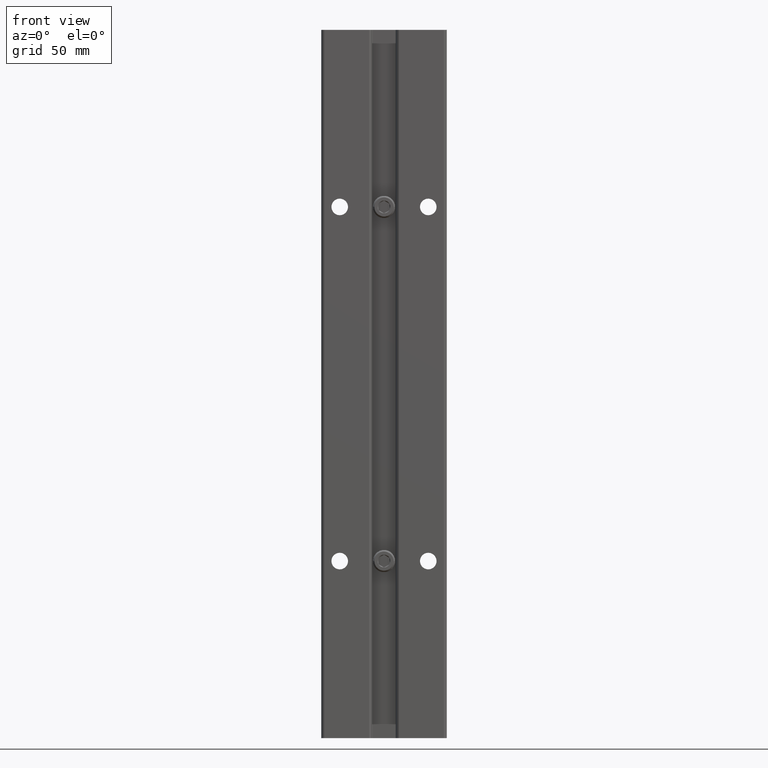
[diagram: clean part render]
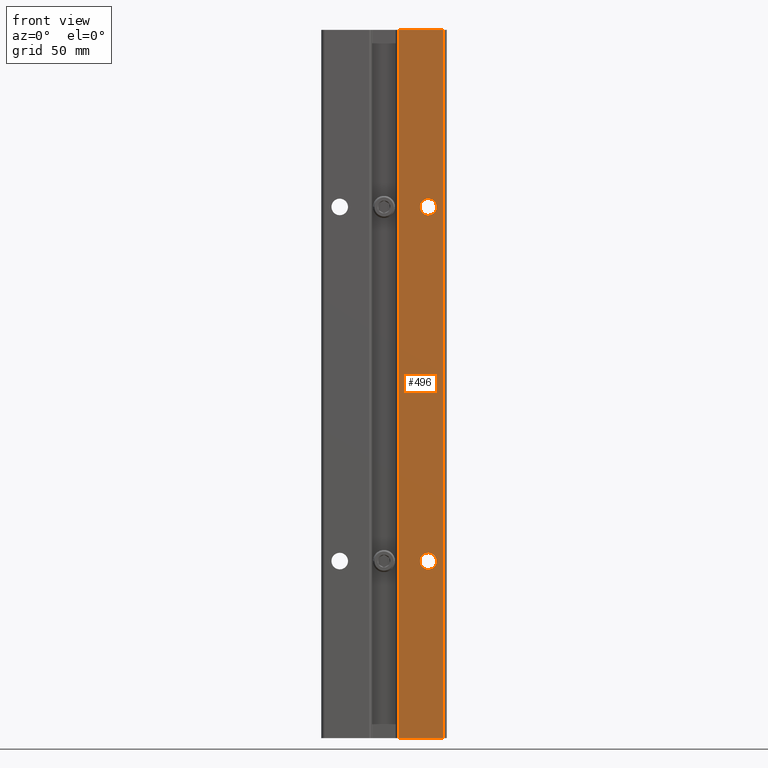
[diagram: same view with one face highlighted and labeled with its STEP entity id]
A machine part, front view. The second image highlights one B-rep face of the part: STEP entity #496.
In plain terms, the highlighted planar face has unit normal (0, 1, 0).
Its self-contained STEP definition (entity closure, byte-faithful):
#39 = VERTEX_POINT ( 'NONE', #353 ) ;
#43 = DIRECTION ( 'NONE',  ( 0.000000000000000000, 1.000000000000000000, 0.000000000000000000 ) ) ;
#59 = PLANE ( 'NONE',  #918 ) ;
#181 = EDGE_CURVE ( 'NONE', #3305, #2049, #1611, .T. ) ;
#266 = DIRECTION ( 'NONE',  ( -1.000000000000000000, 0.000000000000000000, 0.000000000000000000 ) ) ;
#353 = CARTESIAN_POINT ( 'NONE',  ( 0.2544203811541907445, 3.734948428837859484E-18, -12.00000000000000178 ) ) ;
#358 = AXIS2_PLACEMENT_3D ( 'NONE', #1664, #3847, #1382 ) ;
#496 = ADVANCED_FACE ( 'NONE', ( #1870, #2806, #1578 ), #59, .F. ) ;
#703 = CARTESIAN_POINT ( 'NONE',  ( 0.7500000000000001110, 0.000000000000000000, -3.000000000000000444 ) ) ;
#732 = AXIS2_PLACEMENT_3D ( 'NONE', #3888, #845, #1486 ) ;
#837 = ORIENTED_EDGE ( 'NONE', *, *, #3769, .T. ) ;
#844 = VERTEX_POINT ( 'NONE', #2699 ) ;
#845 = DIRECTION ( 'NONE',  ( 0.000000000000000000, 1.000000000000000000, 0.000000000000000000 ) ) ;
#863 = CARTESIAN_POINT ( 'NONE',  ( -2.500000000000000000, 0.000000000000000000, 0.000000000000000000 ) ) ;
#867 = VERTEX_POINT ( 'NONE', #2087 ) ;
#891 = CARTESIAN_POINT ( 'NONE',  ( 0.7500000000000001110, 0.000000000000000000, -9.140500000000001180 ) ) ;
#918 = AXIS2_PLACEMENT_3D ( 'NONE', #3742, #43, #1261 ) ;
#971 = VECTOR ( 'NONE', #2094, 39.37007874015748143 ) ;
#1213 = ORIENTED_EDGE ( 'NONE', *, *, #181, .T. ) ;
#1261 = DIRECTION ( 'NONE',  ( 0.000000000000000000, -0.000000000000000000, 1.000000000000000000 ) ) ;
#1330 = EDGE_CURVE ( 'NONE', #844, #867, #1652, .T. ) ;
#1346 = DIRECTION ( 'NONE',  ( 0.000000000000000000, 0.000000000000000000, 1.000000000000000000 ) ) ;
#1382 = DIRECTION ( 'NONE',  ( 0.000000000000000000, 0.000000000000000000, 1.000000000000000000 ) ) ;
#1391 = ORIENTED_EDGE ( 'NONE', *, *, #3910, .F. ) ;
#1417 = CIRCLE ( 'NONE', #3242, 0.1405000000000003191 ) ;
#1486 = DIRECTION ( 'NONE',  ( 0.000000000000000000, 0.000000000000000000, 1.000000000000000000 ) ) ;
#1578 = FACE_OUTER_BOUND ( 'NONE', #2932, .T. ) ;
#1611 = CIRCLE ( 'NONE', #358, 0.1405000000000003191 ) ;
#1652 = LINE ( 'NONE', #2872, #2831 ) ;
#1664 = CARTESIAN_POINT ( 'NONE',  ( 0.7500000000000001110, 0.000000000000000000, -9.000000000000001776 ) ) ;
#1678 = VECTOR ( 'NONE', #266, 39.37007874015748143 ) ;
#1686 = DIRECTION ( 'NONE',  ( 0.000000000000000000, 1.000000000000000000, 0.000000000000000000 ) ) ;
#1708 = DIRECTION ( 'NONE',  ( 0.000000000000000000, 0.000000000000000000, 1.000000000000000000 ) ) ;
#1854 = EDGE_CURVE ( 'NONE', #2669, #2004, #3119, .T. ) ;
#1870 = FACE_BOUND ( 'NONE', #2305, .T. ) ;
#1884 = AXIS2_PLACEMENT_3D ( 'NONE', #3619, #1686, #1708 ) ;
#1932 = LINE ( 'NONE', #2205, #3893 ) ;
#1949 = CARTESIAN_POINT ( 'NONE',  ( 0.7500000000000001110, 0.000000000000000000, -2.859499999999999709 ) ) ;
#1960 = CARTESIAN_POINT ( 'NONE',  ( 0.2544203811541909666, -3.414809992080329023E-17, 0.000000000000000000 ) ) ;
#2004 = VERTEX_POINT ( 'NONE', #3002 ) ;
#2049 = VERTEX_POINT ( 'NONE', #891 ) ;
#2087 = CARTESIAN_POINT ( 'NONE',  ( 1.013079618845805774, 0.000000000000000000, 0.000000000000000000 ) ) ;
#2090 = EDGE_LOOP ( 'NONE', ( #837, #3198 ) ) ;
#2094 = DIRECTION ( 'NONE',  ( 1.000000000000000000, 0.000000000000000000, 0.000000000000000000 ) ) ;
#2205 = CARTESIAN_POINT ( 'NONE',  ( 0.2544203811541907445, 0.000000000000000000, -14.49573696227415098 ) ) ;
#2222 = CARTESIAN_POINT ( 'NONE',  ( 0.7500000000000001110, 0.000000000000000000, -8.859500000000000597 ) ) ;
#2227 = DIRECTION ( 'NONE',  ( 0.000000000000000000, 0.000000000000000000, 1.000000000000000000 ) ) ;
#2304 = ORIENTED_EDGE ( 'NONE', *, *, #3869, .F. ) ;
#2305 = EDGE_LOOP ( 'NONE', ( #3525, #1213 ) ) ;
#2313 = ORIENTED_EDGE ( 'NONE', *, *, #1330, .T. ) ;
#2445 = CARTESIAN_POINT ( 'NONE',  ( 0.2544203811541907445, 0.000000000000000000, -12.00000000000000178 ) ) ;
#2473 = EDGE_CURVE ( 'NONE', #2049, #3305, #2861, .T. ) ;
#2669 = VERTEX_POINT ( 'NONE', #1949 ) ;
#2699 = CARTESIAN_POINT ( 'NONE',  ( 1.013079618845805774, 0.000000000000000000, -12.00000000000000178 ) ) ;
#2806 = FACE_BOUND ( 'NONE', #2090, .T. ) ;
#2831 = VECTOR ( 'NONE', #1346, 39.37007874015748143 ) ;
#2840 = VERTEX_POINT ( 'NONE', #1960 ) ;
#2861 = CIRCLE ( 'NONE', #732, 0.1405000000000003191 ) ;
#2872 = CARTESIAN_POINT ( 'NONE',  ( 1.013079618845805774, 0.000000000000000000, -14.49573696227415098 ) ) ;
#2932 = EDGE_LOOP ( 'NONE', ( #3648, #2304, #1391, #2313 ) ) ;
#3002 = CARTESIAN_POINT ( 'NONE',  ( 0.7500000000000001110, 0.000000000000000000, -3.140500000000000735 ) ) ;
#3119 = CIRCLE ( 'NONE', #1884, 0.1405000000000003191 ) ;
#3138 = DIRECTION ( 'NONE',  ( 0.000000000000000000, 1.000000000000000000, 0.000000000000000000 ) ) ;
#3198 = ORIENTED_EDGE ( 'NONE', *, *, #1854, .T. ) ;
#3242 = AXIS2_PLACEMENT_3D ( 'NONE', #703, #3138, #2227 ) ;
#3305 = VERTEX_POINT ( 'NONE', #2222 ) ;
#3320 = LINE ( 'NONE', #2445, #1678 ) ;
#3447 = DIRECTION ( 'NONE',  ( 0.000000000000000000, 0.000000000000000000, 1.000000000000000000 ) ) ;
#3525 = ORIENTED_EDGE ( 'NONE', *, *, #2473, .T. ) ;
#3567 = EDGE_CURVE ( 'NONE', #2840, #867, #3643, .T. ) ;
#3619 = CARTESIAN_POINT ( 'NONE',  ( 0.7500000000000001110, 0.000000000000000000, -3.000000000000000444 ) ) ;
#3643 = LINE ( 'NONE', #863, #971 ) ;
#3648 = ORIENTED_EDGE ( 'NONE', *, *, #3567, .F. ) ;
#3742 = CARTESIAN_POINT ( 'NONE',  ( -2.500000000000000000, 0.000000000000000000, 0.1250000000000000000 ) ) ;
#3769 = EDGE_CURVE ( 'NONE', #2004, #2669, #1417, .T. ) ;
#3847 = DIRECTION ( 'NONE',  ( 0.000000000000000000, 1.000000000000000000, 0.000000000000000000 ) ) ;
#3869 = EDGE_CURVE ( 'NONE', #39, #2840, #1932, .T. ) ;
#3888 = CARTESIAN_POINT ( 'NONE',  ( 0.7500000000000001110, 0.000000000000000000, -9.000000000000001776 ) ) ;
#3893 = VECTOR ( 'NONE', #3447, 39.37007874015748143 ) ;
#3910 = EDGE_CURVE ( 'NONE', #844, #39, #3320, .T. ) ;